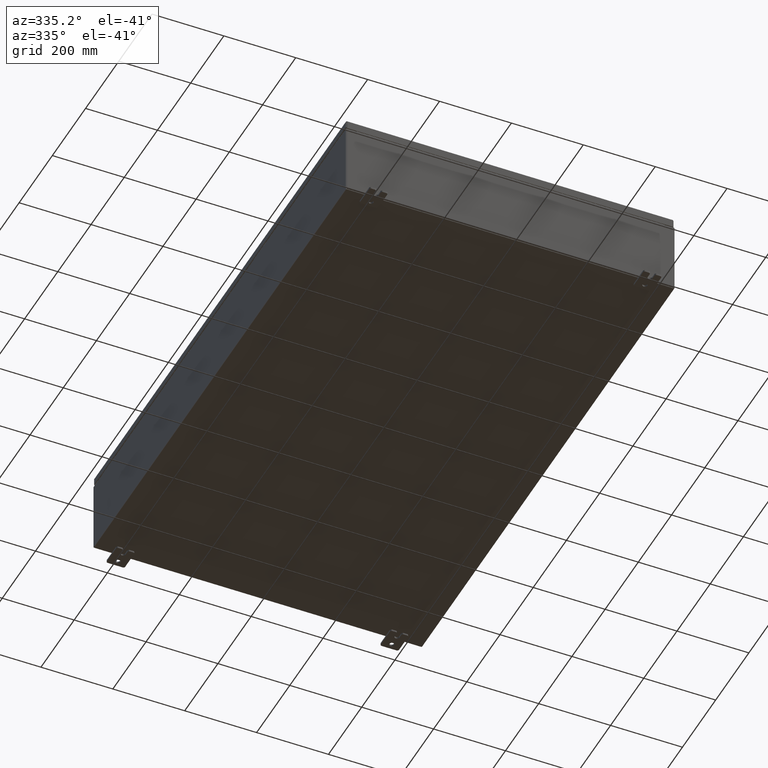
[diagram: clean part render]
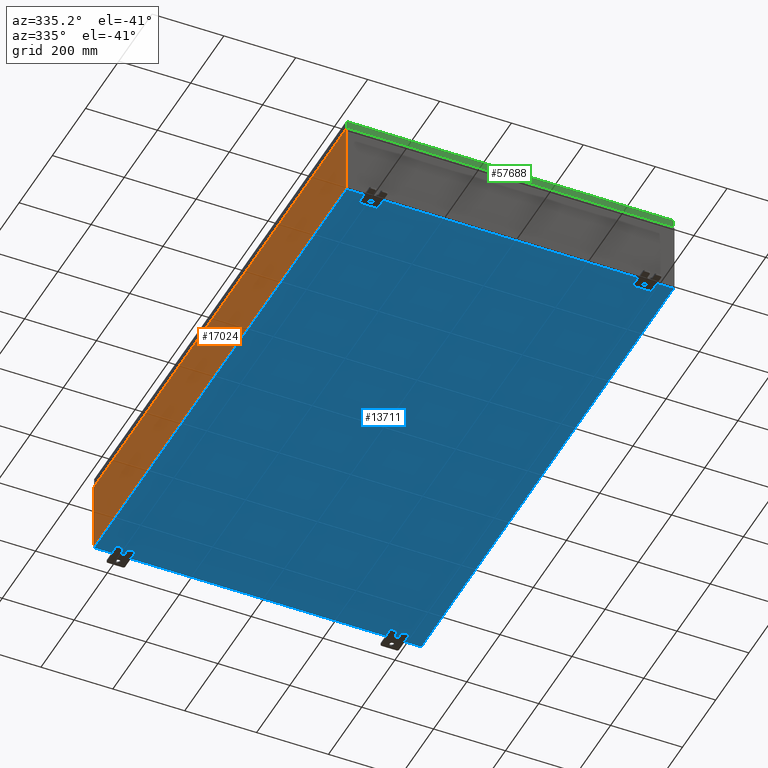
[diagram: same view with three faces highlighted in distinct colors, each labeled with its STEP entity id]
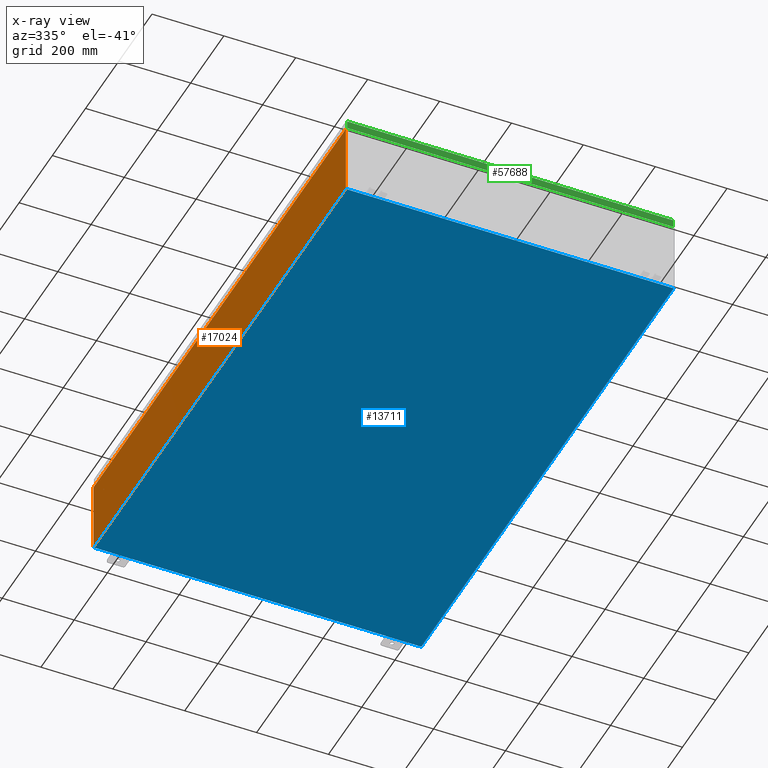
[diagram: x-ray of the same camera — body ghosted, the three highlighted faces saturated]
A machine part, auxiliary view with three faces highlighted in distinct colors.
The next image is the same camera in x-ray (body ghosted, the three faces saturated) — at least one of them is partly hidden behind the body in this view.
Their STEP definitions:

[orange] entity #17024 — the highlighted planar face has unit normal (1, 0, 0).
#1395 = DIRECTION ( 'NONE',  ( 3.584876173029202900E-015, 0.0000000000000000000, -1.000000000000000000 ) ) ;
#3200 = EDGE_CURVE ( 'NONE', #58117, #18997, #10420, .T. ) ;
#6309 = CARTESIAN_POINT ( 'NONE',  ( -18.00000000000000400, 29.92529999999998900, 0.01299999999999984700 ) ) ;
#10259 = VECTOR ( 'NONE', #19452, 39.37007874015748100 ) ;
#10420 = LINE ( 'NONE', #6309, #27057 ) ;
#11735 = DIRECTION ( 'NONE',  ( -0.0000000000000000000, 1.000000000000000000, -0.0000000000000000000 ) ) ;
#11933 = CARTESIAN_POINT ( 'NONE',  ( -18.00000000000000400, 29.92529999999998900, -6.478858477053724100E-014 ) ) ;
#16043 = LINE ( 'NONE', #11933, #28532 ) ;
#17024 = ADVANCED_FACE ( 'NONE', ( #23866 ), #59311, .F. ) ;
#18997 = VERTEX_POINT ( 'NONE', #26965 ) ;
#19452 = DIRECTION ( 'NONE',  ( 0.0000000000000000000, 1.000000000000000000, 0.0000000000000000000 ) ) ;
#20986 = CARTESIAN_POINT ( 'NONE',  ( -18.00000000000000400, -29.92530000000001100, 0.01299999999999984700 ) ) ;
#21097 = ORIENTED_EDGE ( 'NONE', *, *, #3200, .F. ) ;
#22097 = ORIENTED_EDGE ( 'NONE', *, *, #30644, .T. ) ;
#22349 = EDGE_CURVE ( 'NONE', #44940, #55714, #54503, .T. ) ;
#23866 = FACE_OUTER_BOUND ( 'NONE', #59760, .T. ) ;
#24666 = CARTESIAN_POINT ( 'NONE',  ( -18.00000000000003200, 29.92529999999998900, 7.837599999999999200 ) ) ;
#26965 = CARTESIAN_POINT ( 'NONE',  ( -18.00000000000000400, 29.92529999999998600, 0.01299999999999983600 ) ) ;
#27057 = VECTOR ( 'NONE', #11735, 39.37007874015748100 ) ;
#27271 = DIRECTION ( 'NONE',  ( 1.000000000000000000, 0.0000000000000000000, 3.584876173029202900E-015 ) ) ;
#28532 = VECTOR ( 'NONE', #1395, 39.37007874015748100 ) ;
#30644 = EDGE_CURVE ( 'NONE', #55714, #18997, #16043, .T. ) ;
#35280 = CARTESIAN_POINT ( 'NONE',  ( -18.00000000000002800, -29.92530000000001800, 7.837599999999999200 ) ) ;
#37758 = CARTESIAN_POINT ( 'NONE',  ( -18.00000000000000400, 0.0000000000000000000, -6.478858477053724100E-014 ) ) ;
#40961 = ORIENTED_EDGE ( 'NONE', *, *, #22349, .T. ) ;
#41052 = LINE ( 'NONE', #52061, #67830 ) ;
#44940 = VERTEX_POINT ( 'NONE', #68053 ) ;
#49619 = AXIS2_PLACEMENT_3D ( 'NONE', #37758, #27271, #64656 ) ;
#49902 = ORIENTED_EDGE ( 'NONE', *, *, #64214, .T. ) ;
#52061 = CARTESIAN_POINT ( 'NONE',  ( -18.00000000000000400, -29.92530000000001100, -6.478858477053724100E-014 ) ) ;
#54503 = LINE ( 'NONE', #35280, #10259 ) ;
#55714 = VERTEX_POINT ( 'NONE', #24666 ) ;
#57449 = DIRECTION ( 'NONE',  ( -3.584876173029202900E-015, 0.0000000000000000000, 1.000000000000000000 ) ) ;
#58117 = VERTEX_POINT ( 'NONE', #20986 ) ;
#59311 = PLANE ( 'NONE',  #49619 ) ;
#59760 = EDGE_LOOP ( 'NONE', ( #40961, #22097, #21097, #49902 ) ) ;
#64214 = EDGE_CURVE ( 'NONE', #58117, #44940, #41052, .T. ) ;
#64656 = DIRECTION ( 'NONE',  ( 3.584876173029202900E-015, 0.0000000000000000000, -1.000000000000000000 ) ) ;
#67830 = VECTOR ( 'NONE', #57449, 39.37007874015748100 ) ;
#68053 = CARTESIAN_POINT ( 'NONE',  ( -18.00000000000002800, -29.92530000000001100, 7.837599999999999200 ) ) ;

[blue] entity #13711 — the highlighted planar face has unit normal (0, 0, -1).
#5681 = DIRECTION ( 'NONE',  ( -0.0000000000000000000, 1.000000000000000000, -0.0000000000000000000 ) ) ;
#5903 = EDGE_LOOP ( 'NONE', ( #50313, #20320, #9294, #64716 ) ) ;
#5908 = PLANE ( 'NONE',  #68845 ) ;
#9294 = ORIENTED_EDGE ( 'NONE', *, *, #39431, .F. ) ;
#11350 = DIRECTION ( 'NONE',  ( -0.0000000000000000000, -1.000000000000000000, -0.0000000000000000000 ) ) ;
#11358 = DIRECTION ( 'NONE',  ( -1.000000000000000000, 0.0000000000000000000, -0.0000000000000000000 ) ) ;
#11421 = LINE ( 'NONE', #16698, #52408 ) ;
#11859 = CARTESIAN_POINT ( 'NONE',  ( 17.91229999999999800, -29.92530000000001100, -0.07470000000000000300 ) ) ;
#12683 = LINE ( 'NONE', #66119, #23541 ) ;
#13689 = CARTESIAN_POINT ( 'NONE',  ( -17.91230000000000200, 29.92529999999998600, -0.07470000000000000300 ) ) ;
#13711 = ADVANCED_FACE ( 'NONE', ( #39126 ), #5908, .T. ) ;
#15256 = EDGE_CURVE ( 'NONE', #67011, #53378, #54115, .T. ) ;
#16478 = CARTESIAN_POINT ( 'NONE',  ( -17.91230000000000200, -29.92530000000002100, -0.07469999999999994700 ) ) ;
#16698 = CARTESIAN_POINT ( 'NONE',  ( 17.91229999999999800, 29.92529999999999300, -0.07469999999999994700 ) ) ;
#20320 = ORIENTED_EDGE ( 'NONE', *, *, #15256, .T. ) ;
#23541 = VECTOR ( 'NONE', #34062, 39.37007874015748100 ) ;
#24001 = VECTOR ( 'NONE', #5681, 39.37007874015748100 ) ;
#24896 = EDGE_CURVE ( 'NONE', #58163, #34724, #11421, .T. ) ;
#25369 = CARTESIAN_POINT ( 'NONE',  ( -17.91230000000000200, -29.92530000000001100, -0.07469999999999994700 ) ) ;
#30789 = EDGE_CURVE ( 'NONE', #67011, #34724, #12683, .T. ) ;
#34062 = DIRECTION ( 'NONE',  ( 1.000000000000000000, 0.0000000000000000000, 0.0000000000000000000 ) ) ;
#34724 = VERTEX_POINT ( 'NONE', #11859 ) ;
#39126 = FACE_OUTER_BOUND ( 'NONE', #5903, .T. ) ;
#39431 = EDGE_CURVE ( 'NONE', #58163, #53378, #62365, .T. ) ;
#42443 = CARTESIAN_POINT ( 'NONE',  ( 17.91229999999999800, 29.92529999999999300, -0.07469999999999994700 ) ) ;
#43326 = DIRECTION ( 'NONE',  ( 0.0000000000000000000, 0.0000000000000000000, -1.000000000000000000 ) ) ;
#48087 = VECTOR ( 'NONE', #54203, 39.37007874015748100 ) ;
#48457 = CARTESIAN_POINT ( 'NONE',  ( 0.0000000000000000000, 0.0000000000000000000, -0.07470000000000000300 ) ) ;
#50313 = ORIENTED_EDGE ( 'NONE', *, *, #30789, .F. ) ;
#52408 = VECTOR ( 'NONE', #11350, 39.37007874015748100 ) ;
#53378 = VERTEX_POINT ( 'NONE', #13689 ) ;
#54115 = LINE ( 'NONE', #16478, #24001 ) ;
#54203 = DIRECTION ( 'NONE',  ( -1.000000000000000000, -0.0000000000000000000, -0.0000000000000000000 ) ) ;
#58163 = VERTEX_POINT ( 'NONE', #42443 ) ;
#62365 = LINE ( 'NONE', #64962, #48087 ) ;
#64716 = ORIENTED_EDGE ( 'NONE', *, *, #24896, .T. ) ;
#64962 = CARTESIAN_POINT ( 'NONE',  ( -18.00000000000000400, 29.92529999999998900, -0.07470000000000000300 ) ) ;
#66119 = CARTESIAN_POINT ( 'NONE',  ( -18.00000000000000400, -29.92530000000001100, -0.07470000000000000300 ) ) ;
#67011 = VERTEX_POINT ( 'NONE', #25369 ) ;
#68845 = AXIS2_PLACEMENT_3D ( 'NONE', #48457, #43326, #11358 ) ;

[green] entity #57688 — the highlighted planar face has unit normal (-0, 1, -0).
#1140 = LINE ( 'NONE', #14672, #31264 ) ;
#2781 = EDGE_CURVE ( 'NONE', #22169, #23780, #53043, .T. ) ;
#6358 = EDGE_CURVE ( 'NONE', #51831, #22169, #36988, .T. ) ;
#6779 = CARTESIAN_POINT ( 'NONE',  ( 17.84865786437626800, -29.93749999999998900, -0.08769999999999550400 ) ) ;
#8681 = LINE ( 'NONE', #24510, #58851 ) ;
#14672 = CARTESIAN_POINT ( 'NONE',  ( 17.93750000000000000, -29.93749999999999300, -0.9376999999999997600 ) ) ;
#16934 = CARTESIAN_POINT ( 'NONE',  ( -17.84865786437626800, -29.93749999999998900, -0.08769999999999550400 ) ) ;
#18747 = CARTESIAN_POINT ( 'NONE',  ( 17.84865786437626800, -29.93749999999999300, -0.9376999999999997600 ) ) ;
#22169 = VERTEX_POINT ( 'NONE', #6779 ) ;
#22782 = VECTOR ( 'NONE', #30442, 39.37007874015748100 ) ;
#23717 = PLANE ( 'NONE',  #36444 ) ;
#23780 = VERTEX_POINT ( 'NONE', #18747 ) ;
#24510 = CARTESIAN_POINT ( 'NONE',  ( -17.84865786437626800, -29.93749999999998900, 1.518894566415482600E-013 ) ) ;
#24589 = VECTOR ( 'NONE', #48963, 39.37007874015748100 ) ;
#29065 = DIRECTION ( 'NONE',  ( -6.170925750089155000E-031, 1.000000000000000000, -5.064839849203732200E-015 ) ) ;
#29876 = DIRECTION ( 'NONE',  ( 0.0000000000000000000, -5.064839849203732200E-015, -1.000000000000000000 ) ) ;
#30442 = DIRECTION ( 'NONE',  ( 1.000000000000000000, 6.170925750089155900E-031, -3.189293793798686700E-045 ) ) ;
#31264 = VECTOR ( 'NONE', #46646, 39.37007874015748100 ) ;
#32919 = CARTESIAN_POINT ( 'NONE',  ( -17.84865786437626800, -29.93749999999999300, -0.9376999999999954300 ) ) ;
#34191 = CARTESIAN_POINT ( 'NONE',  ( 1.847420896432940200E-029, -29.93749999999998900, 1.518894566415482600E-013 ) ) ;
#36444 = AXIS2_PLACEMENT_3D ( 'NONE', #34191, #29065, #66479 ) ;
#36772 = ORIENTED_EDGE ( 'NONE', *, *, #41190, .F. ) ;
#36988 = LINE ( 'NONE', #51735, #22782 ) ;
#37349 = FACE_OUTER_BOUND ( 'NONE', #40208, .T. ) ;
#38231 = CARTESIAN_POINT ( 'NONE',  ( 17.84865786437626800, -29.93749999999998900, -0.07469999999999962800 ) ) ;
#40208 = EDGE_LOOP ( 'NONE', ( #41779, #63248, #36772, #68859 ) ) ;
#41190 = EDGE_CURVE ( 'NONE', #23780, #42093, #1140, .T. ) ;
#41779 = ORIENTED_EDGE ( 'NONE', *, *, #6358, .F. ) ;
#42093 = VERTEX_POINT ( 'NONE', #32919 ) ;
#46646 = DIRECTION ( 'NONE',  ( -1.000000000000000000, -8.758115402030108600E-047, 1.218385167906012900E-016 ) ) ;
#48963 = DIRECTION ( 'NONE',  ( -0.0000000000000000000, -5.064839849203732200E-015, -1.000000000000000000 ) ) ;
#49417 = EDGE_CURVE ( 'NONE', #51831, #42093, #8681, .T. ) ;
#51735 = CARTESIAN_POINT ( 'NONE',  ( 17.93750000000000000, -29.93749999999998900, -0.08769999999999550400 ) ) ;
#51831 = VERTEX_POINT ( 'NONE', #16934 ) ;
#53043 = LINE ( 'NONE', #38231, #24589 ) ;
#57688 = ADVANCED_FACE ( 'NONE', ( #37349 ), #23717, .F. ) ;
#58851 = VECTOR ( 'NONE', #29876, 39.37007874015748100 ) ;
#63248 = ORIENTED_EDGE ( 'NONE', *, *, #49417, .T. ) ;
#66479 = DIRECTION ( 'NONE',  ( 0.0000000000000000000, 5.064839849203732200E-015, 1.000000000000000000 ) ) ;
#68859 = ORIENTED_EDGE ( 'NONE', *, *, #2781, .F. ) ;